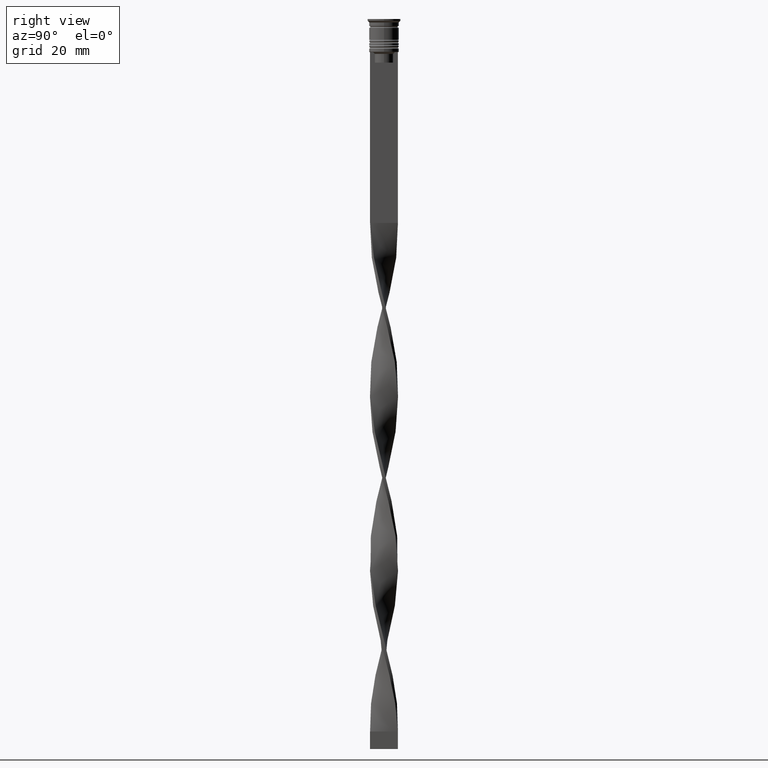
[diagram: clean part render]
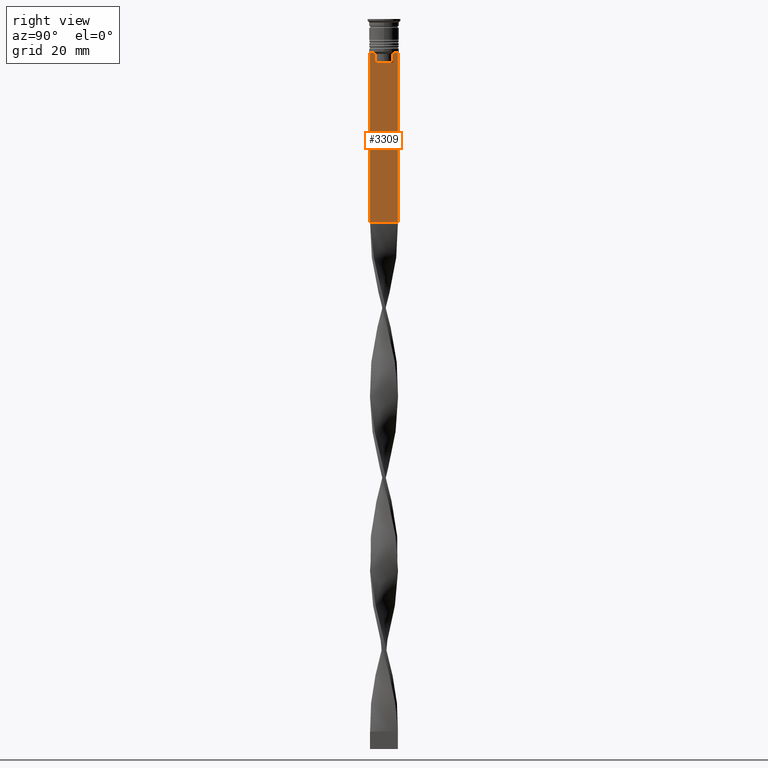
[diagram: same view with one face highlighted and labeled with its STEP entity id]
A machine part, right view. The second image highlights one B-rep face of the part: STEP entity #3309.
In plain terms, the highlighted planar face has unit normal (-1, 0, 0).
Its self-contained STEP definition (entity closure, byte-faithful):
#79 = CARTESIAN_POINT ( 'NONE',  ( 0.5000000000000000000, -4.000000000000000000, -9.500000000000000000 ) ) ;
#220 = EDGE_CURVE ( 'NONE', #1637, #1696, #3395, .T. ) ;
#247 = DIRECTION ( 'NONE',  ( -1.000000000000000000, 0.000000000000000000, 0.000000000000000000 ) ) ;
#266 = VERTEX_POINT ( 'NONE', #1638 ) ;
#338 = CARTESIAN_POINT ( 'NONE',  ( 0.5000000000000000000, -4.000000000000000000, -1.437742251701450202 ) ) ;
#402 = DIRECTION ( 'NONE',  ( 0.000000000000000000, -1.000000000000000000, 0.000000000000000000 ) ) ;
#471 = DIRECTION ( 'NONE',  ( 0.000000000000000000, 0.000000000000000000, -1.000000000000000000 ) ) ;
#472 = CARTESIAN_POINT ( 'NONE',  ( 0.5000000000000000000, 4.000000000000000000, -9.500000000000000000 ) ) ;
#481 = ORIENTED_EDGE ( 'NONE', *, *, #502, .T. ) ;
#483 = CARTESIAN_POINT ( 'NONE',  ( 0.5000000000000000000, 2.602402735934616906, -12.50000000000000000 ) ) ;
#502 = EDGE_CURVE ( 'NONE', #3267, #266, #563, .T. ) ;
#560 = DIRECTION ( 'NONE',  ( 0.000000000000000000, 0.000000000000000000, 1.000000000000000000 ) ) ;
#563 = LINE ( 'NONE', #828, #2763 ) ;
#640 = VERTEX_POINT ( 'NONE', #966 ) ;
#666 = VECTOR ( 'NONE', #3346, 1000.000000000000000 ) ;
#718 = CARTESIAN_POINT ( 'NONE',  ( 0.5000000000000000000, -4.000000000000000000, -9.500000000000000000 ) ) ;
#746 = LINE ( 'NONE', #3437, #2211 ) ;
#810 = PLANE ( 'NONE',  #3831 ) ;
#828 = CARTESIAN_POINT ( 'NONE',  ( 0.5000000000000000000, -4.000000000000000000, -58.50000000000000000 ) ) ;
#830 = B_SPLINE_CURVE_WITH_KNOTS ( 'NONE', 3,
 ( #2776, #1905, #3676, #3365 ),
 .UNSPECIFIED., .F., .F.,
 ( 4, 4 ),
 ( 0.005378271293598279809, 0.006090816219555997280 ),
 .UNSPECIFIED. ) ;
#850 = DIRECTION ( 'NONE',  ( 0.000000000000000000, 1.000000000000000000, 0.000000000000000000 ) ) ;
#857 = ORIENTED_EDGE ( 'NONE', *, *, #1977, .F. ) ;
#919 = VECTOR ( 'NONE', #2445, 1000.000000000000000 ) ;
#940 = CARTESIAN_POINT ( 'NONE',  ( 0.5000000000000000000, -2.602402735934616906, -10.00000000000000178 ) ) ;
#966 = CARTESIAN_POINT ( 'NONE',  ( 0.5000000000000000000, -3.110064308016796897, -9.500000000000000000 ) ) ;
#979 = CARTESIAN_POINT ( 'NONE',  ( 0.5000000000000000000, -2.941045828809988105, -9.666875663357579640 ) ) ;
#1011 = LINE ( 'NONE', #1026, #3832 ) ;
#1026 = CARTESIAN_POINT ( 'NONE',  ( 0.5000000000000000000, 2.602402735934616906, 0.000000000000000000 ) ) ;
#1085 = DIRECTION ( 'NONE',  ( -0.000000000000000000, -0.000000000000000000, 1.000000000000000000 ) ) ;
#1227 = CARTESIAN_POINT ( 'NONE',  ( 0.5000000000000000000, -2.771864055700302032, -9.833582414266679450 ) ) ;
#1356 = CARTESIAN_POINT ( 'NONE',  ( 0.5000000000000000000, -4.000000000000000000, -9.500000000000000000 ) ) ;
#1357 = EDGE_CURVE ( 'NONE', #640, #1469, #1844, .T. ) ;
#1432 = EDGE_CURVE ( 'NONE', #2595, #1637, #1011, .T. ) ;
#1469 = VERTEX_POINT ( 'NONE', #718 ) ;
#1505 = EDGE_CURVE ( 'NONE', #3745, #2570, #1565, .T. ) ;
#1518 = CARTESIAN_POINT ( 'NONE',  ( 0.5000000000000000000, -2.602402735934616906, -10.00000000000000178 ) ) ;
#1565 = LINE ( 'NONE', #1356, #666 ) ;
#1623 = CARTESIAN_POINT ( 'NONE',  ( 0.5000000000000000000, 2.649999999999995914, -12.50000000000000000 ) ) ;
#1637 = VERTEX_POINT ( 'NONE', #483 ) ;
#1638 = CARTESIAN_POINT ( 'NONE',  ( 0.5000000000000000000, 4.000000000000000000, -58.50000000000000000 ) ) ;
#1696 = VERTEX_POINT ( 'NONE', #3629 ) ;
#1788 = VECTOR ( 'NONE', #471, 1000.000000000000000 ) ;
#1844 = LINE ( 'NONE', #79, #919 ) ;
#1905 = CARTESIAN_POINT ( 'NONE',  ( 0.5000000000000000000, 2.941047749529105193, -9.666873766989334982 ) ) ;
#1948 = ORIENTED_EDGE ( 'NONE', *, *, #2387, .T. ) ;
#1977 = EDGE_CURVE ( 'NONE', #3745, #266, #2240, .T. ) ;
#1993 = CARTESIAN_POINT ( 'NONE',  ( 0.5000000000000000000, -4.000000000000000000, -1.437742251701450202 ) ) ;
#2044 = ORIENTED_EDGE ( 'NONE', *, *, #2826, .T. ) ;
#2073 = VERTEX_POINT ( 'NONE', #1518 ) ;
#2211 = VECTOR ( 'NONE', #1085, 1000.000000000000000 ) ;
#2232 = DIRECTION ( 'NONE',  ( 0.000000000000000000, 0.000000000000000000, -1.000000000000000000 ) ) ;
#2240 = LINE ( 'NONE', #3424, #1788 ) ;
#2247 = ORIENTED_EDGE ( 'NONE', *, *, #1357, .T. ) ;
#2255 = ORIENTED_EDGE ( 'NONE', *, *, #2477, .T. ) ;
#2261 = ORIENTED_EDGE ( 'NONE', *, *, #2280, .T. ) ;
#2280 = EDGE_CURVE ( 'NONE', #2073, #640, #2775, .T. ) ;
#2304 = ORIENTED_EDGE ( 'NONE', *, *, #1505, .T. ) ;
#2387 = EDGE_CURVE ( 'NONE', #2570, #2595, #830, .T. ) ;
#2445 = DIRECTION ( 'NONE',  ( 0.000000000000000000, -1.000000000000000000, 0.000000000000000000 ) ) ;
#2477 = EDGE_CURVE ( 'NONE', #1469, #3267, #3815, .T. ) ;
#2569 = FACE_OUTER_BOUND ( 'NONE', #3029, .T. ) ;
#2570 = VERTEX_POINT ( 'NONE', #2641 ) ;
#2573 = ORIENTED_EDGE ( 'NONE', *, *, #220, .T. ) ;
#2595 = VERTEX_POINT ( 'NONE', #2679 ) ;
#2638 = VECTOR ( 'NONE', #3312, 1000.000000000000000 ) ;
#2641 = CARTESIAN_POINT ( 'NONE',  ( 0.5000000000000000000, 3.110064308016796897, -9.500000000000000000 ) ) ;
#2679 = CARTESIAN_POINT ( 'NONE',  ( 0.5000000000000000000, 2.602402735934616906, -10.00000000000000178 ) ) ;
#2763 = VECTOR ( 'NONE', #850, 1000.000000000000000 ) ;
#2775 = B_SPLINE_CURVE_WITH_KNOTS ( 'NONE', 3,
 ( #940, #1227, #979, #3603 ),
 .UNSPECIFIED., .F., .F.,
 ( 4, 4 ),
 ( 0.01295151922336847811, 0.01367164596165162602 ),
 .UNSPECIFIED. ) ;
#2776 = CARTESIAN_POINT ( 'NONE',  ( 0.5000000000000000000, 3.110064308016796897, -9.500000000000000000 ) ) ;
#2826 = EDGE_CURVE ( 'NONE', #1696, #2073, #746, .T. ) ;
#2867 = CARTESIAN_POINT ( 'NONE',  ( 0.5000000000000000000, -4.000000000000000000, -58.50000000000000000 ) ) ;
#2992 = ORIENTED_EDGE ( 'NONE', *, *, #1432, .T. ) ;
#3029 = EDGE_LOOP ( 'NONE', ( #2304, #1948, #2992, #2573, #2044, #2261, #2247, #2255, #481, #857 ) ) ;
#3076 = VECTOR ( 'NONE', #402, 1000.000000000000000 ) ;
#3267 = VERTEX_POINT ( 'NONE', #2867 ) ;
#3309 = ADVANCED_FACE ( 'NONE', ( #2569 ), #810, .F. ) ;
#3312 = DIRECTION ( 'NONE',  ( 0.000000000000000000, 0.000000000000000000, -1.000000000000000000 ) ) ;
#3346 = DIRECTION ( 'NONE',  ( 0.000000000000000000, -1.000000000000000000, 0.000000000000000000 ) ) ;
#3365 = CARTESIAN_POINT ( 'NONE',  ( 0.5000000000000000000, 2.602402735934616906, -10.00000000000000178 ) ) ;
#3395 = LINE ( 'NONE', #1623, #3076 ) ;
#3424 = CARTESIAN_POINT ( 'NONE',  ( 0.5000000000000000000, 4.000000000000000000, -1.437742251701450202 ) ) ;
#3437 = CARTESIAN_POINT ( 'NONE',  ( 0.5000000000000000000, -2.602402735934616906, 0.000000000000000000 ) ) ;
#3603 = CARTESIAN_POINT ( 'NONE',  ( 0.5000000000000000000, -3.110064308016796897, -9.500000000000000000 ) ) ;
#3629 = CARTESIAN_POINT ( 'NONE',  ( 0.5000000000000000000, -2.602402735934616906, -12.50000000000000000 ) ) ;
#3676 = CARTESIAN_POINT ( 'NONE',  ( 0.5000000000000000000, 2.771866350855961780, -9.833580160334840059 ) ) ;
#3745 = VERTEX_POINT ( 'NONE', #472 ) ;
#3815 = LINE ( 'NONE', #338, #2638 ) ;
#3831 = AXIS2_PLACEMENT_3D ( 'NONE', #1993, #247, #560 ) ;
#3832 = VECTOR ( 'NONE', #2232, 1000.000000000000000 ) ;